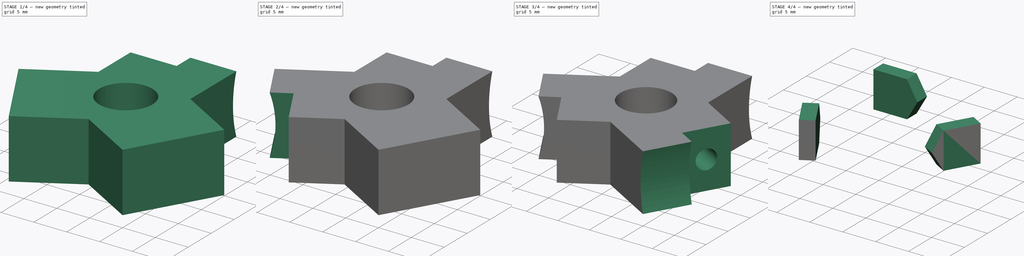
[diagram: build sequence overview — one tinted view per stage of 4, left to right]
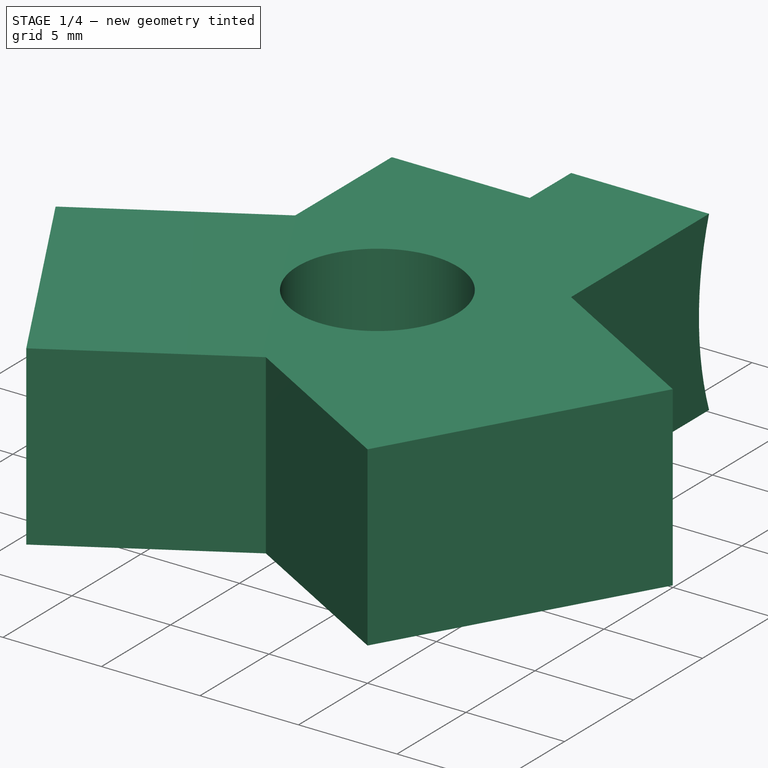
[diagram: stage 1 of 4 — iso view after this stage's code; geometry added in this stage tinted green]
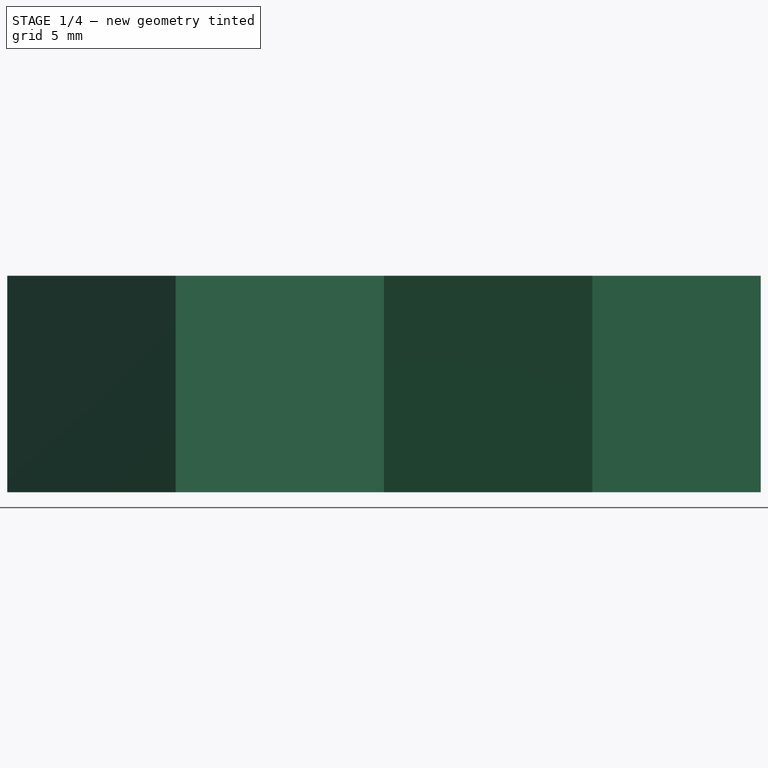
[diagram: stage 1 of 4 — front view after this stage's code; geometry added in this stage tinted green]
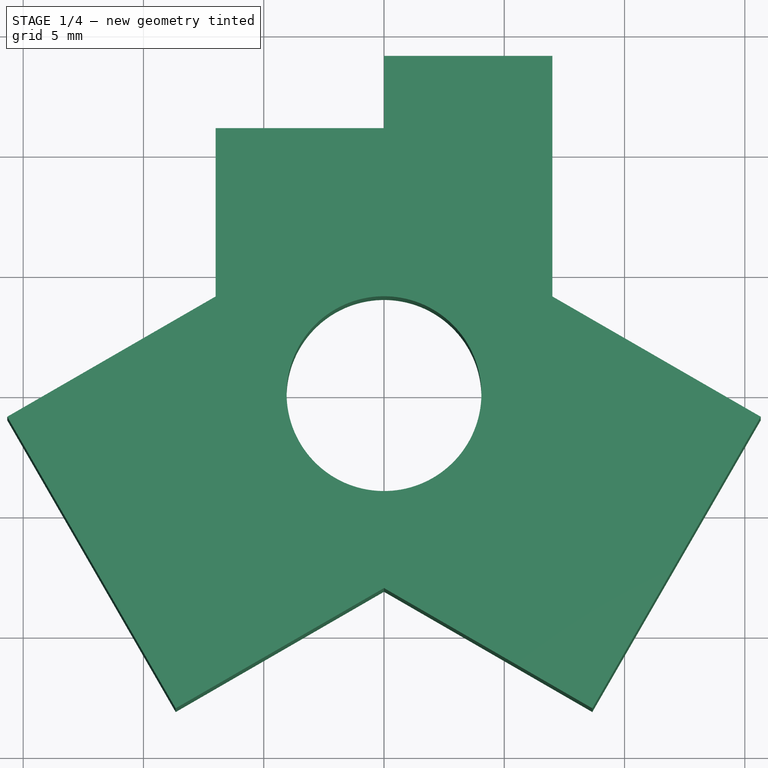
[diagram: stage 1 of 4 — top view after this stage's code; geometry added in this stage tinted green]
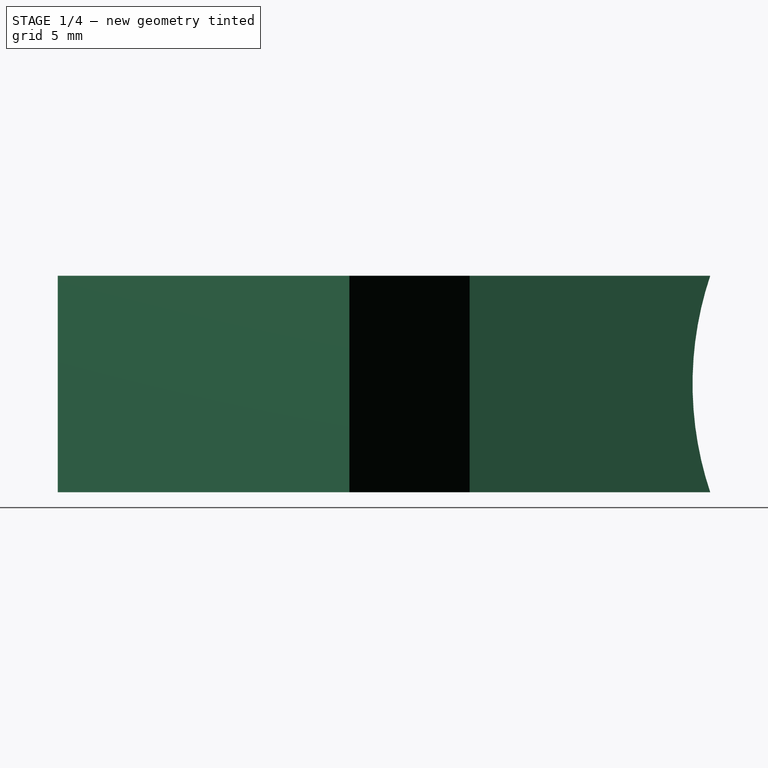
[diagram: stage 1 of 4 — right view after this stage's code; geometry added in this stage tinted green]
FCSTD DOCUMENT  (FreeCAD 0.16RUnknown)
Label: joint-y.010.bottom
License: All rights reserved
LicenseURL: http://en.wikipedia.org/wiki/All_rights_reserved
objects: Sketcher::SketchObject×11, PartDesign::Pocket×9, Part::Extrusion×4
note: 33 computed .brp shape members not serialized (recipe doc carries the construction recipe); baked Part::Feature solids carry a one-line shape summary decoded from their .brp

FEATURE [Sketcher::SketchObject] Sketch
  sketch-geometry (16):
    g0: LineSegment StartX=-8.66025 StartY=-13.0829 StartZ=0 EndX=-15.6603 EndY=-0.958548 EndZ=0
    g1: LineSegment StartX=-7 StartY=14.0415 StartZ=0 EndX=7 EndY=14.0415 EndZ=0
    g2: LineSegment StartX=15.6603 StartY=-0.958548 StartZ=0 EndX=8.66025 EndY=-13.0829 EndZ=0
    g3: LineSegment [constr] StartX=-8.66025 StartY=-13.0829 StartZ=0 EndX=7 EndY=14.0415 EndZ=0
    g4: LineSegment [constr] StartX=-7 StartY=14.0415 StartZ=0 EndX=8.66025 EndY=-13.0829 EndZ=0
    g5: LineSegment [constr] StartX=15.6603 StartY=-0.958548 StartZ=0 EndX=-15.6603 EndY=-0.958548 EndZ=0
    g6: Circle CenterX=0 CenterY=0 CenterZ=0 NormalX=0 NormalY=0 NormalZ=1 Radius=4.05
    g7: LineSegment StartX=-15.6603 StartY=-0.958548 StartZ=0 EndX=-7 EndY=4.04145 EndZ=0
    g8: LineSegment StartX=-7 StartY=4.04145 StartZ=0 EndX=-7 EndY=14.0415 EndZ=0
    g9: LineSegment StartX=7 StartY=14.0415 StartZ=0 EndX=7 EndY=4.04145 EndZ=0
    g10: LineSegment StartX=7 StartY=4.04145 StartZ=0 EndX=15.6603 EndY=-0.958548 EndZ=0
    g11: LineSegment StartX=-8.66025 StartY=-13.0829 StartZ=0 EndX=0 EndY=-8.0829 EndZ=0
    g12: LineSegment StartX=0 StartY=-8.0829 StartZ=0 EndX=8.66025 EndY=-13.0829 EndZ=0
    g13: LineSegment [constr] StartX=0 StartY=-8.0829 StartZ=0 EndX=0 EndY=0 EndZ=0
    g14: LineSegment [constr] StartX=-7 StartY=4.04145 StartZ=0 EndX=0 EndY=0 EndZ=0
    g15: LineSegment [constr] StartX=0 StartY=0 StartZ=0 EndX=7 EndY=4.04145 EndZ=0
  constraints (43):
    c: Horizontal(g1)
    c: Equal(g0,g2)
    c: Equal(g2,g1)
    c: DistanceX(g1,g1) = 14
    c: Horizontal(g5)
    c: Coincident(g0,g5)
    c: Coincident(g0,g3)
    c: Coincident(g2,g4)
    c: Coincident(g1,g3)
    c: Equal(g3,g5)
    c: Equal(g5,g4)
    c: Radius(g6) = 4.05
    c: Coincident(g7,g8)
    c: Vertical(g8)
    c: Vertical(g9)
    c: Coincident(g9,g10)
    c: Coincident(g11,g12)
    c: Coincident(g0,g7)
    c: Coincident(g1,g4)
    c: Coincident(g1,g8)
    c: Coincident(g1,g9)
    c: Coincident(g2,g5)
    c: Coincident(g2,g10)
    c: Coincident(g2,g12)
    c: Coincident(g0,g11)
    c: Equal(g7,g11)
    c: Equal(g11,g12)
    c: Equal(g12,g9)
    c: Equal(g9,g10)
    c: Equal(g10,g8)
    c: Perpendicular(g7,g0)
    c: Coincident(g6,g-1)
    c: PointOnObject(g11,g-2)
    c: DistanceY(g9,g9) = 10
    c: Vertical(g13)
    c: Coincident(g14,g15)
    c: Coincident(g13,g14)
    c: Coincident(g13,g-1)
    c: Coincident(g11,g13)
    c: Coincident(g7,g14)
    c: Coincident(g9,g15)
    c: Equal(g15,g14)
    c: Equal(g14,g13)
FEATURE [Part::Extrusion] Extrude
  Base = -> Sketch
  Dir = (0,0,9)
  Solid = true
FEATURE [Sketcher::SketchObject] Sketch001
  ExternalGeometry = -> [Extrude]
  Placement = pos=(-7,0,0) rot=(0.57735,-0.57735,-0.57735;2.0944rad)
  Support = -> Extrude [Face3]
  sketch-geometry (2):
    g0: LineSegment StartX=-14.0415 StartY=9 StartZ=0 EndX=-14.0415 EndY=0 EndZ=0
    g1: ArcOfCircle CenterX=-27.4568 CenterY=4.5 CenterZ=0 NormalX=0 NormalY=0 NormalZ=1 Radius=14.15 StartAngle=5.95954 EndAngle=6.60683
  constraints (6):
    c: Vertical(g0)
    c: Coincident(g0,g1)
    c: Coincident(g0,g-3)
    c: Coincident(g0,g1)
    c: Coincident(g0,g-3)
    c: Radius(g1) = 14.15
FEATURE [PartDesign::Pocket] Pocket
  Length = 5
  Sketch = -> Sketch001
  Type = 1
FEATURE [Sketcher::SketchObject] Sketch002
  ExternalGeometry = -> [Pocket]
  Placement = pos=(-7,0,0) rot=(0.57735,-0.57735,-0.57735;2.0944rad)
  Support = -> Pocket [Face7]
  sketch-geometry (4):
    g0: LineSegment StartX=-14.0415 StartY=9 StartZ=0 EndX=-11.0415 EndY=9 EndZ=0
    g1: LineSegment StartX=-11.0415 StartY=9 StartZ=0 EndX=-11.0415 EndY=1e-12 EndZ=0
    g2: LineSegment StartX=-11.0415 StartY=1e-12 StartZ=0 EndX=-14.0415 EndY=1e-12 EndZ=0
    g3: LineSegment StartX=-14.0415 StartY=9 StartZ=0 EndX=-14.0415 EndY=1e-12 EndZ=0
  constraints (11):
    c: Horizontal(g0)
    c: Coincident(g0,g1)
    c: Vertical(g1)
    c: Coincident(g1,g2)
    c: Horizontal(g2)
    c: Coincident(g2,g-3)
    c: Coincident(g0,g-3)
    c: DistanceX(g0,g0) = 3
    c: Vertical(g3)
    c: Coincident(g2,g3)
    c: Coincident(g0,g3)
FEATURE [PartDesign::Pocket] Pocket001
  Length = 7
  Sketch = -> Sketch002
  Type = 0
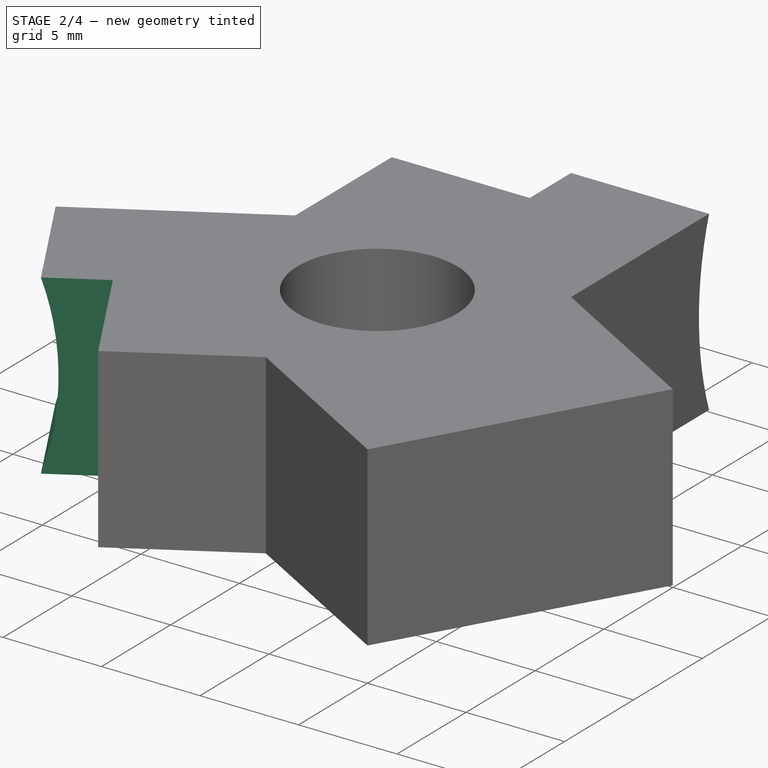
[diagram: stage 2 of 4 — iso view after this stage's code; geometry added in this stage tinted green]
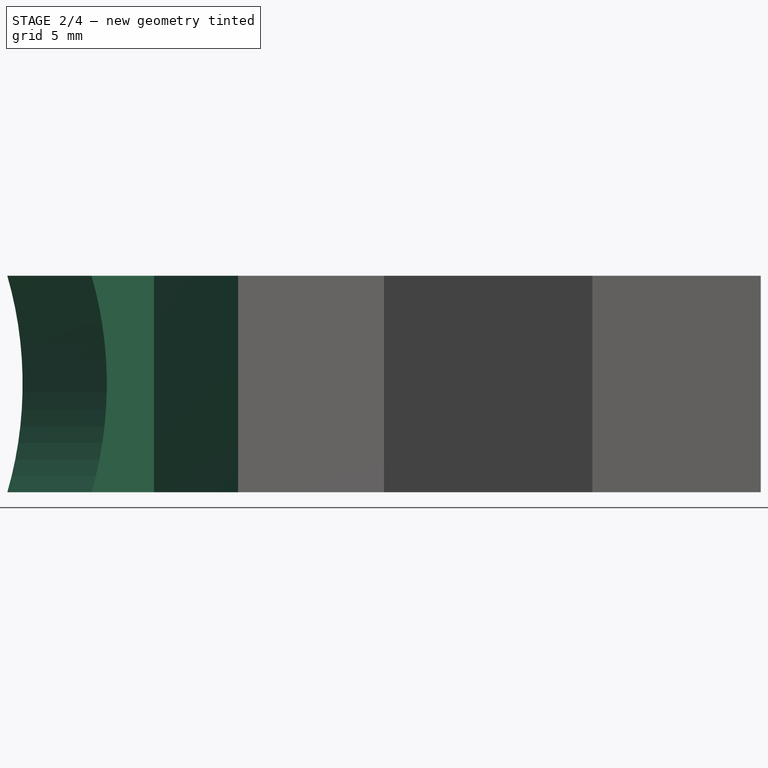
[diagram: stage 2 of 4 — front view after this stage's code; geometry added in this stage tinted green]
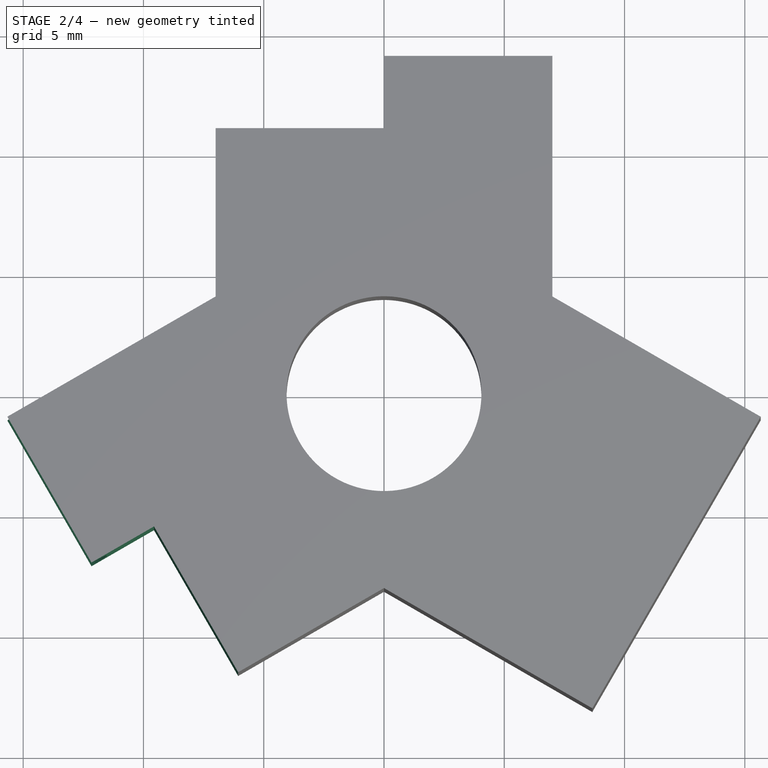
[diagram: stage 2 of 4 — top view after this stage's code; geometry added in this stage tinted green]
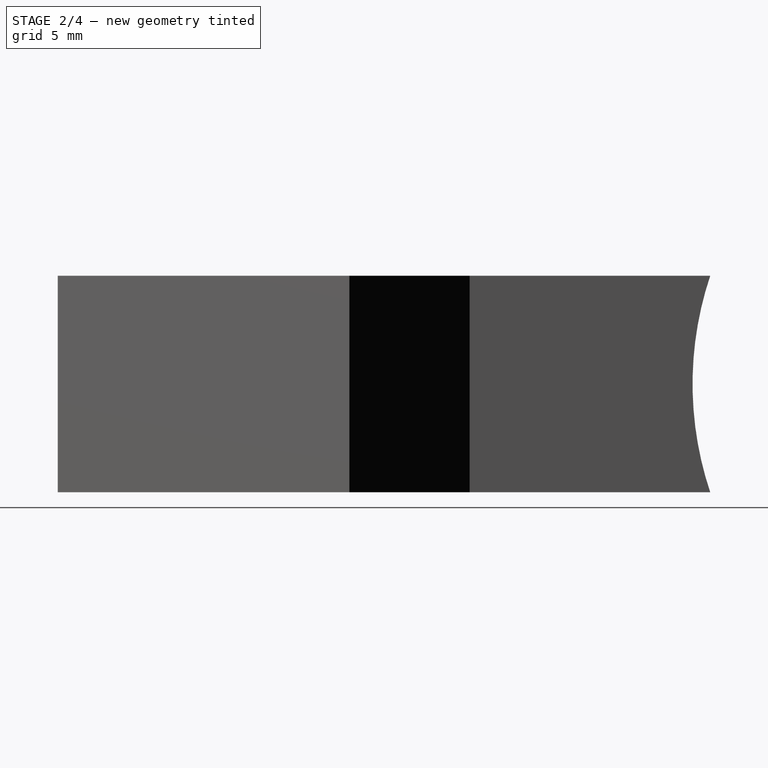
[diagram: stage 2 of 4 — right view after this stage's code; geometry added in this stage tinted green]
FEATURE [Sketcher::SketchObject] Sketch003
  ExternalGeometry = -> [Pocket001]
  Placement = pos=(0,11.0415,0) rot=(0,0.707107,0.707107;3.14159rad)
  Support = -> Pocket001 [Face13]
  sketch-geometry (3):
    g0: LineSegment [constr] StartX=0 StartY=1e-12 StartZ=0 EndX=3.5 EndY=4.5 EndZ=0
    g1: LineSegment [constr] StartX=3.5 StartY=4.5 StartZ=0 EndX=7 EndY=9 EndZ=0
    g2: Circle CenterX=3.5 CenterY=4.5 CenterZ=0 NormalX=0 NormalY=0 NormalZ=1 Radius=1.55
  constraints (7):
    c: Coincident(g0,g1)
    c: Coincident(g1,g-3)
    c: Coincident(g0,g-4)
    c: Equal(g0,g1)
    c: Parallel(g0,g1)
    c: Coincident(g0,g2)
    c: Radius(g2) = 1.55
FEATURE [PartDesign::Pocket] Pocket002
  Length = 6
  Sketch = -> Sketch003
  Type = 0
  UpToFace = -> Pocket001 [Face14]
FEATURE [Sketcher::SketchObject] Sketch004
  ExternalGeometry = -> [Pocket002]
  Placement = pos=(3.5,-6.06218,0) rot=(0.935113,0.250563,0.250563;1.63783rad)
  Support = -> Pocket002 [Face2]
  sketch-geometry (2):
    g0: LineSegment StartX=-14.0415 StartY=9 StartZ=0 EndX=-14.0415 EndY=0 EndZ=0
    g1: ArcOfCircle CenterX=-27.4568 CenterY=4.5 CenterZ=0 NormalX=0 NormalY=0 NormalZ=1 Radius=14.15 StartAngle=5.95954 EndAngle=6.60683
  constraints (6):
    c: Vertical(g0)
    c: Coincident(g0,g1)
    c: Coincident(g0,g-3)
    c: Coincident(g0,g1)
    c: Coincident(g0,g-3)
    c: Radius(g1) = 14.15
FEATURE [PartDesign::Pocket] Pocket003
  Length = 5
  Sketch = -> Sketch004
  Type = 1
FEATURE [Sketcher::SketchObject] Sketch005
  ExternalGeometry = -> [Pocket003]
  Placement = pos=(3.5,-6.06218,0) rot=(0.935113,0.250563,0.250563;1.63783rad)
  Support = -> Pocket003 [Face2]
  sketch-geometry (4):
    g0: LineSegment StartX=-14.0415 StartY=0 StartZ=0 EndX=-11.0415 EndY=0 EndZ=0
    g1: LineSegment StartX=-11.0415 StartY=0 StartZ=0 EndX=-11.0415 EndY=9 EndZ=0
    g2: LineSegment StartX=-11.0415 StartY=9 StartZ=0 EndX=-14.0415 EndY=9 EndZ=0
    g3: LineSegment StartX=-14.0415 StartY=9 StartZ=0 EndX=-14.0415 EndY=0 EndZ=0
  constraints (11):
    c: Coincident(g0,g1)
    c: Coincident(g1,g2)
    c: Coincident(g2,g3)
    c: Coincident(g3,g0)
    c: Horizontal(g0)
    c: Horizontal(g2)
    c: Vertical(g1)
    c: Vertical(g3)
    c: DistanceX(g2,g2) = 3
    c: Coincident(g2,g-3)
    c: Coincident(g0,g-3)
FEATURE [PartDesign::Pocket] Pocket004
  Length = 7
  Sketch = -> Sketch005
  Type = 0
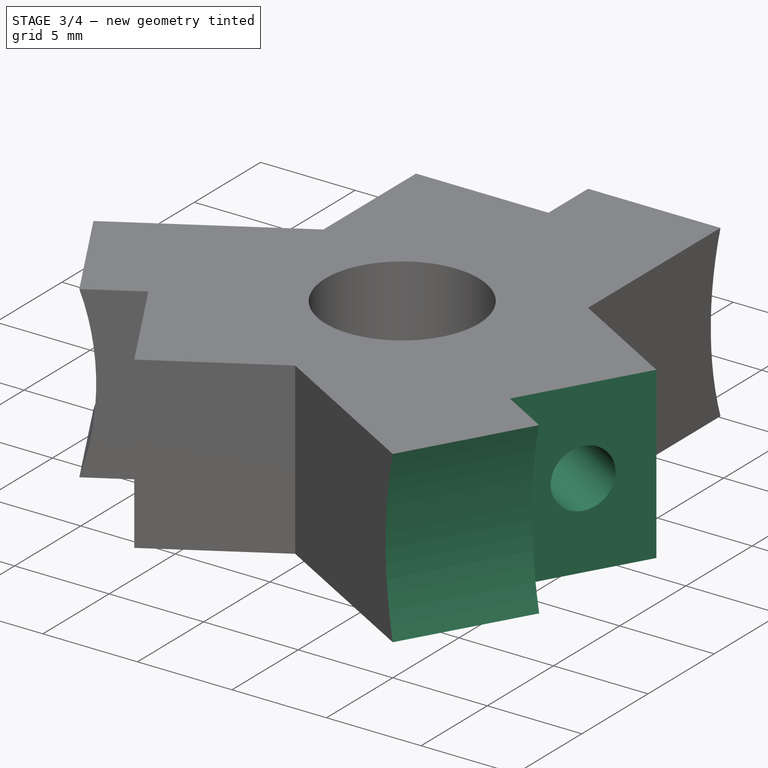
[diagram: stage 3 of 4 — iso view after this stage's code; geometry added in this stage tinted green]
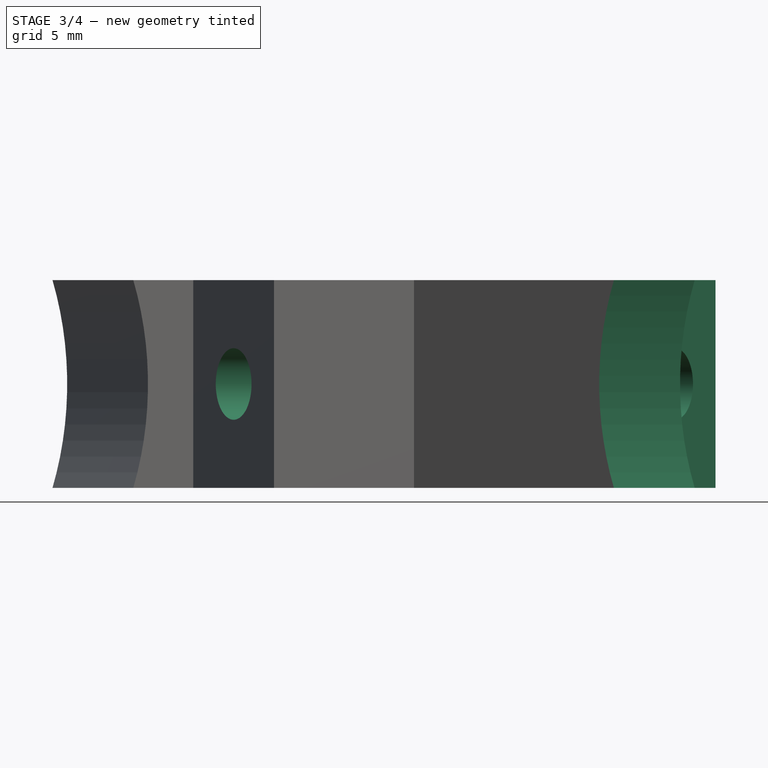
[diagram: stage 3 of 4 — front view after this stage's code; geometry added in this stage tinted green]
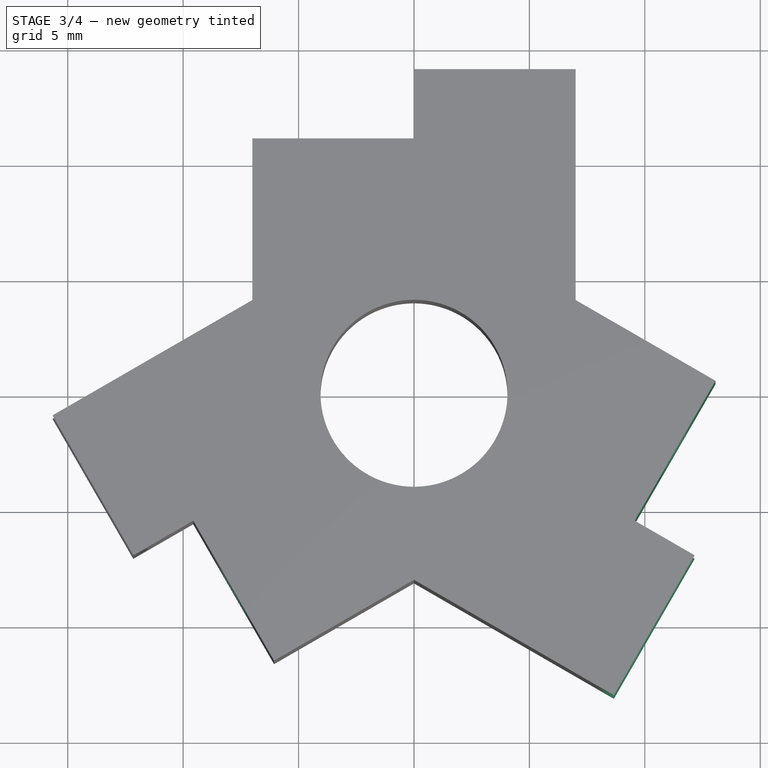
[diagram: stage 3 of 4 — top view after this stage's code; geometry added in this stage tinted green]
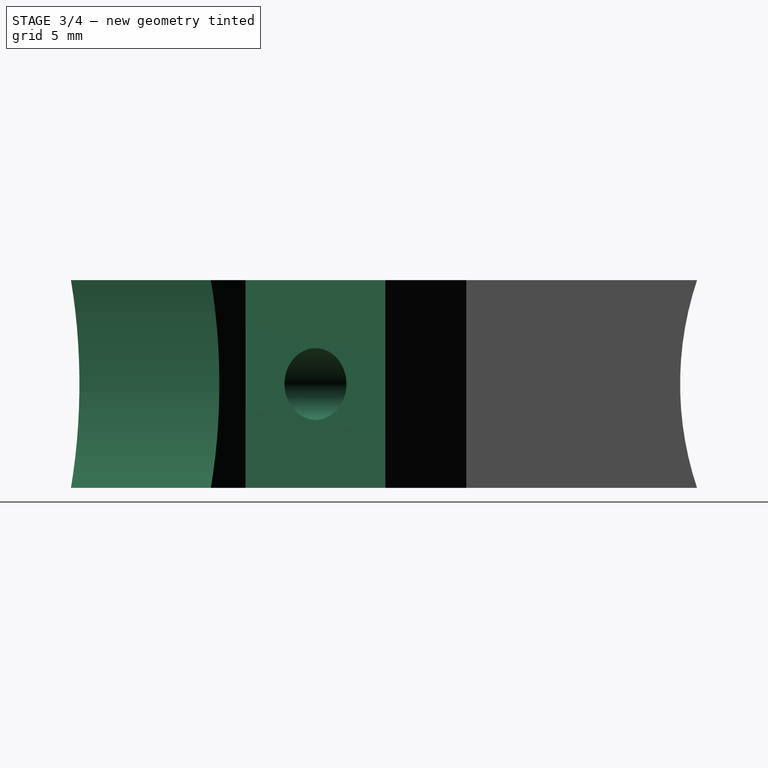
[diagram: stage 3 of 4 — right view after this stage's code; geometry added in this stage tinted green]
FEATURE [Sketcher::SketchObject] Sketch006
  ExternalGeometry = -> [Pocket004]
  Placement = pos=(-9.56218,-5.52073,0) rot=(0.774597,-0.447214,-0.447214;1.82348rad)
  Support = -> Pocket004 [Face14]
  sketch-geometry (3):
    g0: LineSegment [constr] StartX=0 StartY=0 StartZ=0 EndX=3.5 EndY=4.5 EndZ=0
    g1: LineSegment [constr] StartX=3.5 StartY=4.5 StartZ=0 EndX=7 EndY=9 EndZ=0
    g2: Circle CenterX=3.5 CenterY=4.5 CenterZ=0 NormalX=0 NormalY=0 NormalZ=1 Radius=1.55
  constraints (7):
    c: Coincident(g0,g1)
    c: Coincident(g1,g-3)
    c: Coincident(g0,g-4)
    c: Equal(g0,g1)
    c: Parallel(g0,g1)
    c: Coincident(g0,g2)
    c: Radius(g2) = 1.55
FEATURE [PartDesign::Pocket] Pocket005
  Length = 6
  Sketch = -> Sketch006
  Type = 0
FEATURE [Sketcher::SketchObject] Sketch007
  ExternalGeometry = -> [Pocket005]
  Placement = pos=(3.5,6.06218,0) rot=(0.186157,0.694747,0.694747;2.77349rad)
  Support = -> Pocket005 [Face5]
  sketch-geometry (2):
    g0: ArcOfCircle CenterX=-27.4568 CenterY=4.5 CenterZ=0 NormalX=0 NormalY=0 NormalZ=1 Radius=14.15 StartAngle=5.95954 EndAngle=6.60683
    g1: LineSegment StartX=-14.0415 StartY=9 StartZ=0 EndX=-14.0415 EndY=0 EndZ=0
  constraints (6):
    c: Vertical(g1)
    c: Coincident(g0,g1)
    c: Coincident(g0,g-3)
    c: Coincident(g0,g1)
    c: Coincident(g0,g-3)
    c: Radius(g0) = 14.15
FEATURE [PartDesign::Pocket] Pocket006
  Length = 5
  Sketch = -> Sketch007
  Type = 1
FEATURE [Sketcher::SketchObject] Sketch008
  ExternalGeometry = -> [Pocket006]
  Placement = pos=(3.5,6.06218,0) rot=(0.186157,0.694747,0.694747;2.77349rad)
  Support = -> Pocket006 [Face8]
  sketch-geometry (4):
    g0: LineSegment StartX=-14.0415 StartY=9 StartZ=0 EndX=-11.0415 EndY=9 EndZ=0
    g1: LineSegment StartX=-11.0415 StartY=9 StartZ=0 EndX=-11.0415 EndY=0 EndZ=0
    g2: LineSegment StartX=-11.0415 StartY=0 StartZ=0 EndX=-14.0415 EndY=0 EndZ=0
    g3: LineSegment StartX=-14.0415 StartY=0 StartZ=0 EndX=-14.0415 EndY=9 EndZ=0
  constraints (11):
    c: Coincident(g0,g1)
    c: Coincident(g1,g2)
    c: Coincident(g2,g3)
    c: Coincident(g3,g0)
    c: Horizontal(g0)
    c: Horizontal(g2)
    c: Vertical(g1)
    c: Vertical(g3)
    c: Coincident(g0,g-3)
    c: Coincident(g2,g-3)
    c: DistanceX(g0,g0) = 3
FEATURE [PartDesign::Pocket] Pocket007
  Length = 7
  Sketch = -> Sketch008
  Type = 0
FEATURE [Sketcher::SketchObject] Sketch009
  ExternalGeometry = -> [Pocket007]
  Placement = pos=(9.56218,-5.52073,0) rot=(0.774597,0.447214,0.447214;1.82348rad)
  Support = -> Pocket007 [Face6]
  sketch-geometry (3):
    g0: LineSegment [constr] StartX=0 StartY=0 StartZ=0 EndX=3.5 EndY=4.5 EndZ=0
    g1: LineSegment [constr] StartX=3.5 StartY=4.5 StartZ=0 EndX=7 EndY=9 EndZ=0
    g2: Circle CenterX=3.5 CenterY=4.5 CenterZ=0 NormalX=0 NormalY=0 NormalZ=1 Radius=1.55
  constraints (7):
    c: Coincident(g0,g1)
    c: Coincident(g1,g-3)
    c: Coincident(g0,g-4)
    c: Equal(g0,g1)
    c: Parallel(g1,g0)
    c: Coincident(g0,g2)
    c: Radius(g2) = 1.55
FEATURE [PartDesign::Pocket] Pocket008
  Length = 6
  Sketch = -> Sketch009
  Type = 0
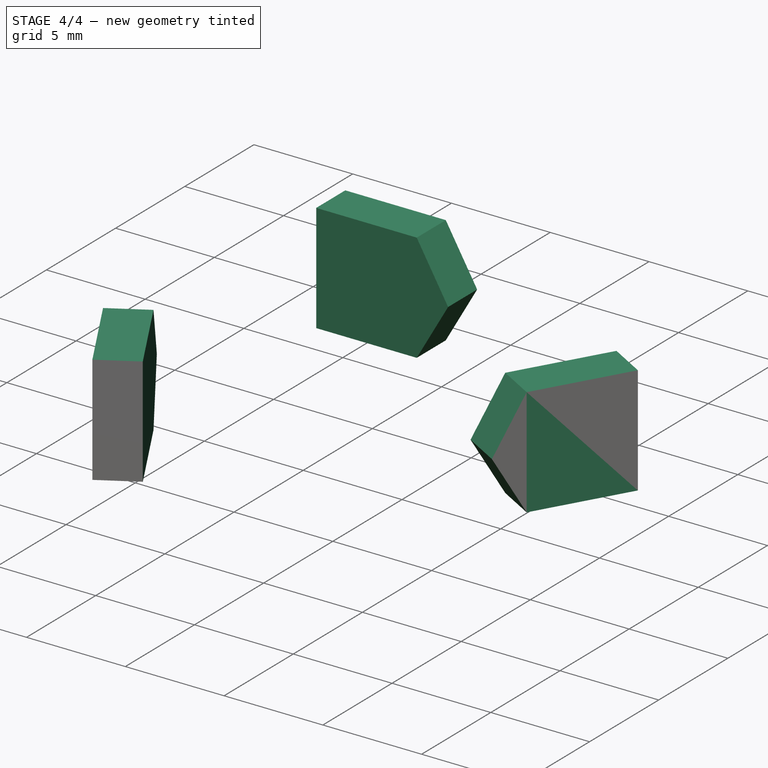
[diagram: stage 4 of 4 — iso view after this stage's code; geometry added in this stage tinted green]
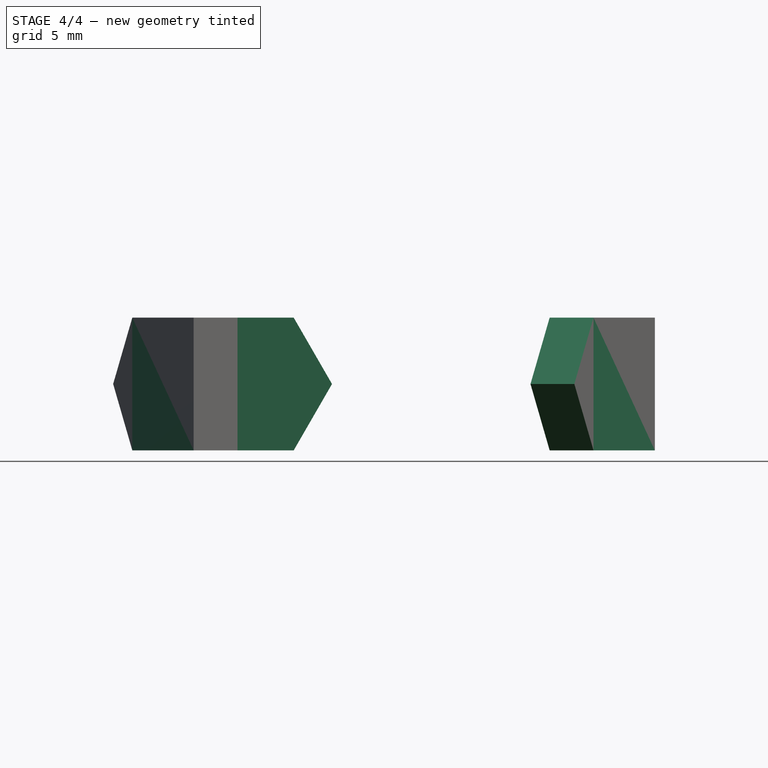
[diagram: stage 4 of 4 — front view after this stage's code; geometry added in this stage tinted green]
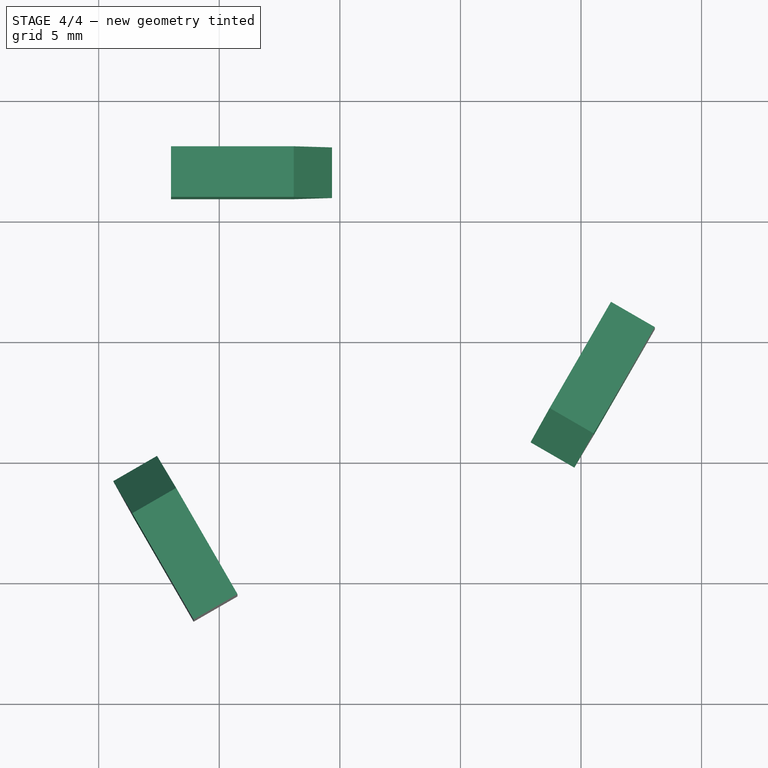
[diagram: stage 4 of 4 — top view after this stage's code; geometry added in this stage tinted green]
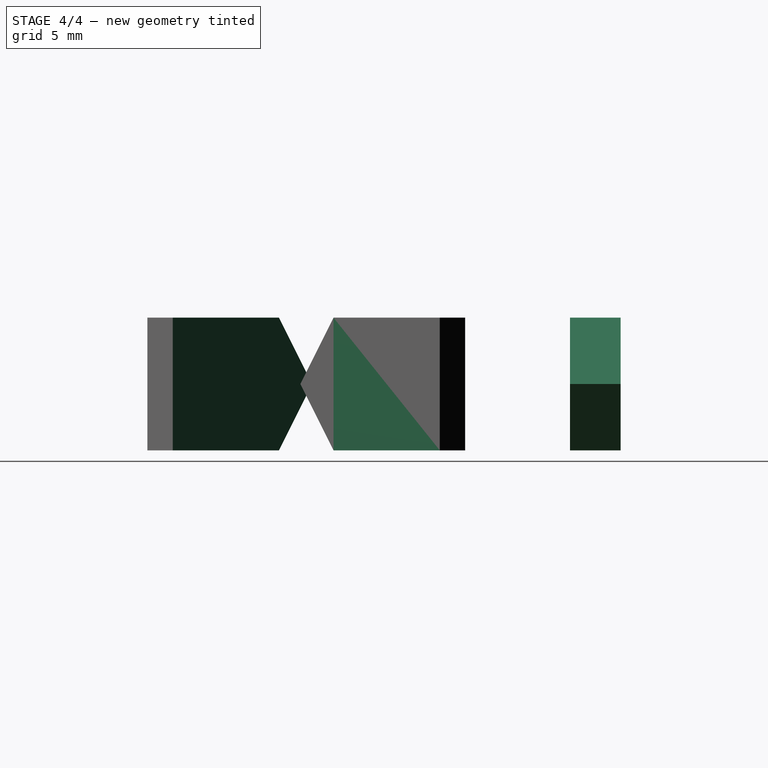
[diagram: stage 4 of 4 — right view after this stage's code; geometry added in this stage tinted green]
FEATURE [Sketcher::SketchObject] Sketch010
  ExternalGeometry = -> [Pocket008]
  Placement = pos=(0,11.0415,0) rot=(0,0.707107,0.707107;3.14159rad)
  Support = -> Pocket008 [Face11]
  sketch-geometry (6):
    g0: LineSegment [constr] StartX=3.5 StartY=4.5 StartZ=0 EndX=0.324574 EndY=4.5 EndZ=0
    g1: LineSegment StartX=0.324574 StartY=4.5 StartZ=0 EndX=1.91229 EndY=1.75 EndZ=0
    g2: LineSegment StartX=1.91229 StartY=1.75 StartZ=0 EndX=7 EndY=1.75 EndZ=0
    g3: LineSegment StartX=7 StartY=1.75 StartZ=0 EndX=7 EndY=7.25 EndZ=0
    g4: LineSegment StartX=7 StartY=7.25 StartZ=0 EndX=1.91229 EndY=7.25 EndZ=0
    g5: LineSegment StartX=1.91229 StartY=7.25 StartZ=0 EndX=0.324574 EndY=4.5 EndZ=0
  constraints (17):
    c: Horizontal(g0)
    c: Coincident(g0,g1)
    c: Coincident(g1,g2)
    c: Horizontal(g2)
    c: Coincident(g2,g3)
    c: Vertical(g3)
    c: Coincident(g3,g4)
    c: Horizontal(g4)
    c: Coincident(g4,g5)
    c: Coincident(g0,g5)
    c: Coincident(g0,g-3)
    c: Equal(g1,g0)
    c: Equal(g0,g5)
    c: Equal(g2,g4)
    c: Angle(g1,g5) = 2.0944
    c: DistanceY(g3,g3) = 5.5
    c: PointOnObject(g3,g-4)
FEATURE [Part::Extrusion] Extrude001
  Base = -> Sketch010
  Dir = (0,-2.1,0)
  Placement = pos=(0,-3,0) rot=(0,0,1;0rad)
  Solid = true
FEATURE [Part::Extrusion] Extrude002
  Base = -> Sketch010
  Dir = (0,-2.1,0)
  Placement = pos=(0,0,0) rot=(0,0,1;2.0944rad)
  Solid = true
FEATURE [Part::Extrusion] Extrude003
  Base = -> Sketch010
  Dir = (0,-2.1,0)
  Placement = pos=(0,0,0) rot=(0,0,-1;2.0944rad)
  Solid = true
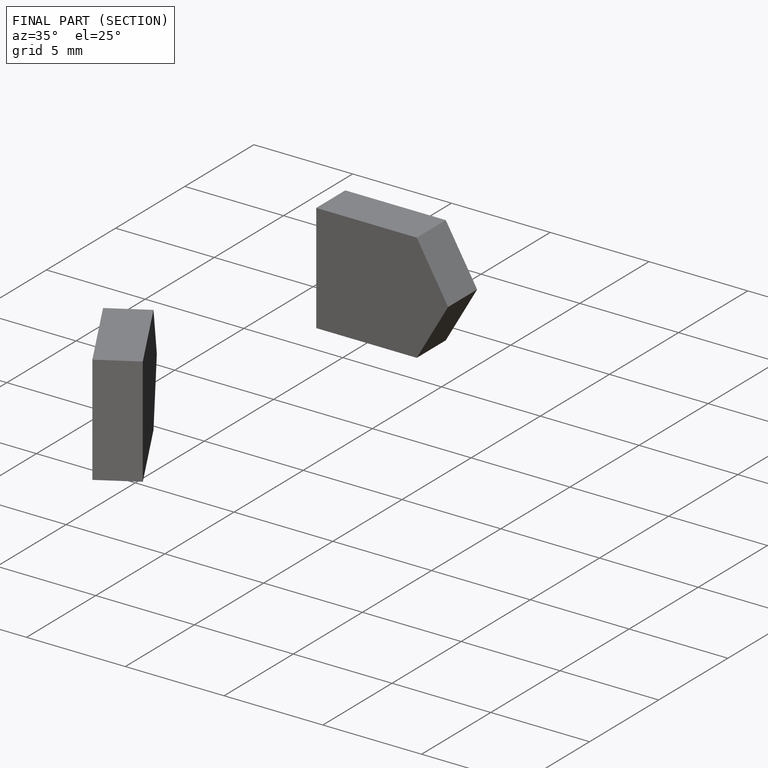
[diagram: finished part — half-section view (interior)]
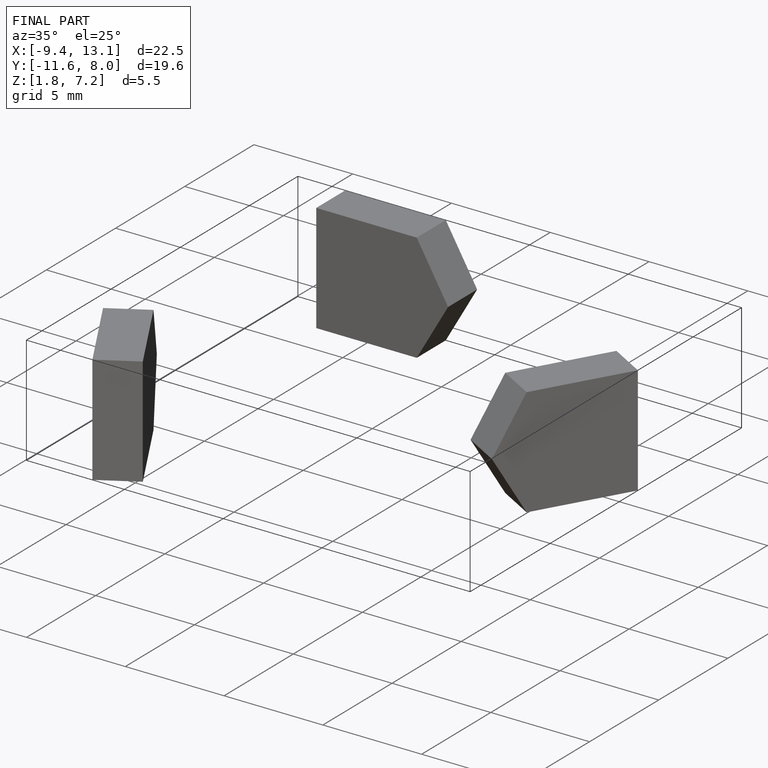
[diagram: finished part — iso view with bounding-box wireframe]
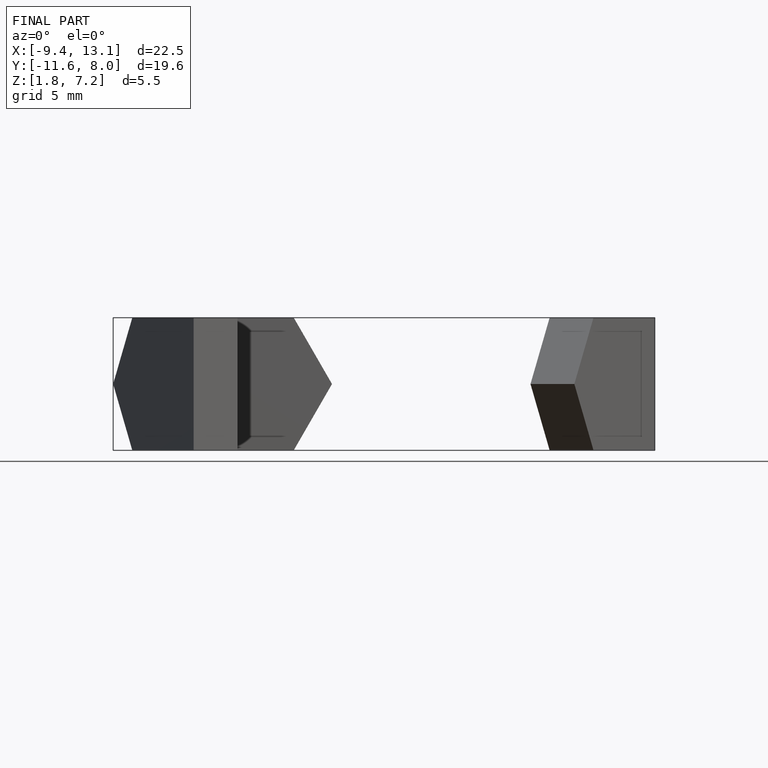
[diagram: finished part — front view with bounding-box wireframe]
